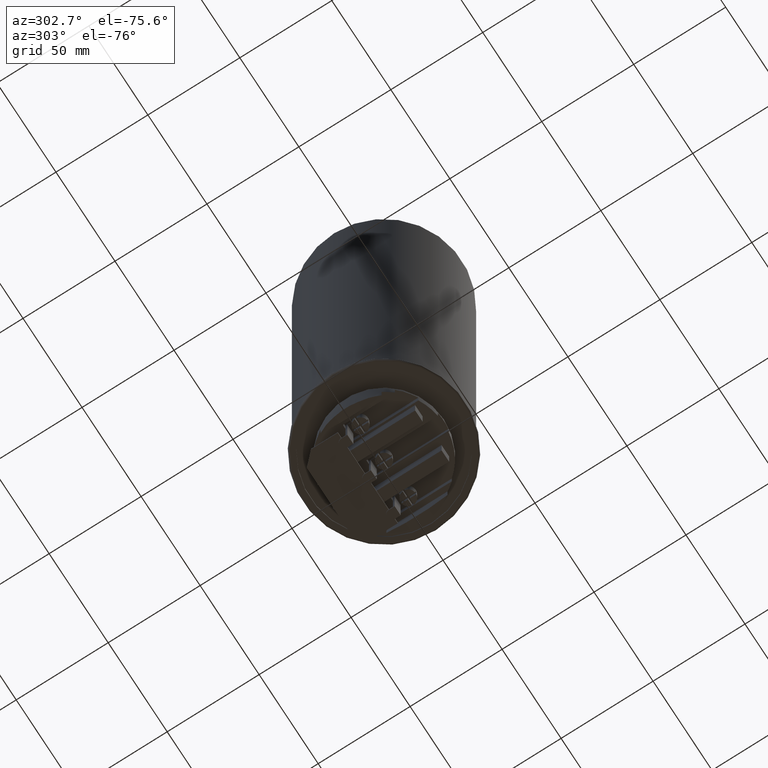
[diagram: clean part render]
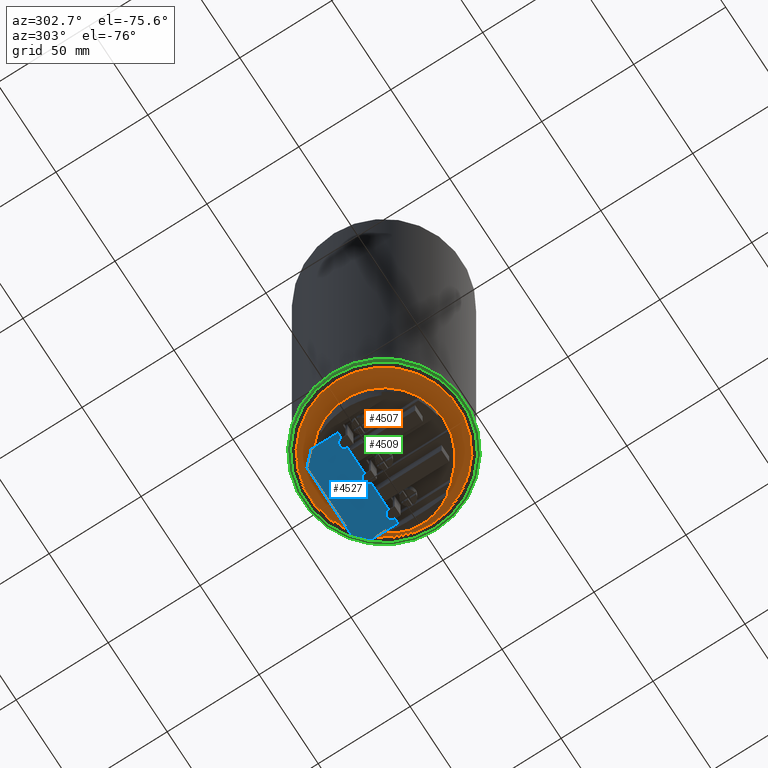
[diagram: same view with three faces highlighted in distinct colors, each labeled with its STEP entity id]
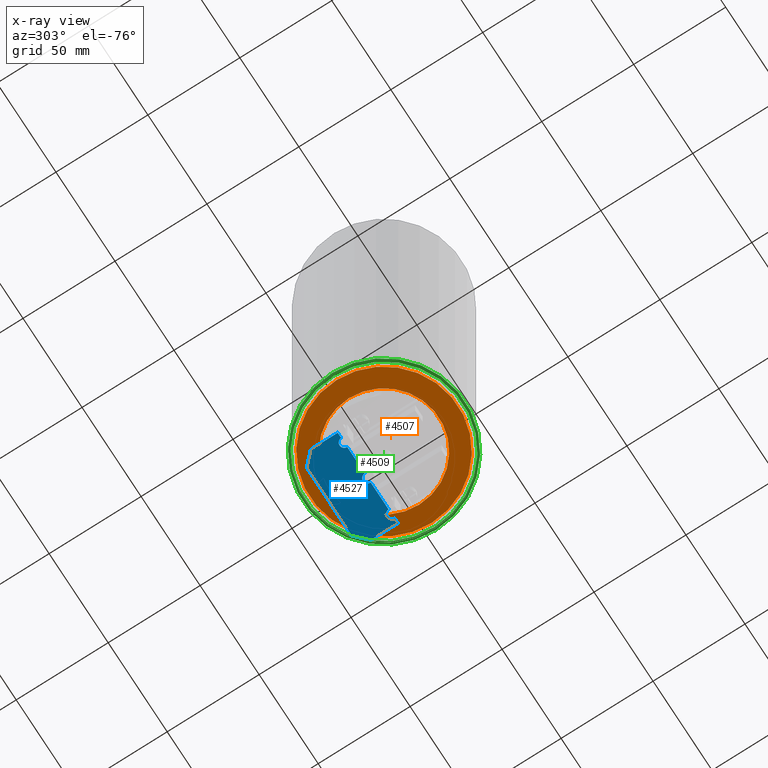
[diagram: x-ray of the same camera — body ghosted, the three highlighted faces saturated]
A machine part, auxiliary view with three faces highlighted in distinct colors.
The next image is the same camera in x-ray (body ghosted, the three faces saturated) — at least one of them is partly hidden behind the body in this view.
Their STEP definitions:

[orange] entity #4507 — the highlighted planar face has unit normal (0, 0, 1).
#201=FACE_BOUND('',#700,.T.);
#291=PLANE('',#4929);
#441=FACE_OUTER_BOUND('',#699,.T.);
#699=EDGE_LOOP('',(#3515));
#700=EDGE_LOOP('',(#3516));
#931=CIRCLE('',#4925,1.175);
#933=CIRCLE('',#4928,1.58130818663597);
#2083=VERTEX_POINT('',#6766);
#2085=VERTEX_POINT('',#6772);
#2602=EDGE_CURVE('',#2083,#2083,#931,.T.);
#2605=EDGE_CURVE('',#2085,#2085,#933,.T.);
#3515=ORIENTED_EDGE('',*,*,#2605,.T.);
#3516=ORIENTED_EDGE('',*,*,#2602,.T.);
#4507=ADVANCED_FACE('',(#441,#201),#291,.F.);
#4925=AXIS2_PLACEMENT_3D('',#6768,#5623,#5624);
#4928=AXIS2_PLACEMENT_3D('',#6774,#5630,#5631);
#4929=AXIS2_PLACEMENT_3D('',#6775,#5632,#5633);
#5623=DIRECTION('center_axis',(0.,0.,1.));
#5624=DIRECTION('ref_axis',(1.,0.,0.));
#5630=DIRECTION('center_axis',(0.,0.,-1.));
#5631=DIRECTION('ref_axis',(1.,0.,0.));
#5632=DIRECTION('center_axis',(0.,0.,1.));
#5633=DIRECTION('ref_axis',(1.,0.,0.));
#6766=CARTESIAN_POINT('',(-1.175,1.43895998899814E-16,0.));
#6768=CARTESIAN_POINT('Origin',(0.,0.,0.));
#6772=CARTESIAN_POINT('',(-1.58130818663597,1.93654400922925E-16,0.));
#6774=CARTESIAN_POINT('Origin',(0.,0.,0.));
#6775=CARTESIAN_POINT('Origin',(0.,0.,0.));

[blue] entity #4527 — the highlighted planar face has unit normal (0, -0, 1).
#307=PLANE('',#4958);
#461=FACE_OUTER_BOUND('',#722,.T.);
#722=EDGE_LOOP('',(#3613,#3614,#3615,#3616,#3617,#3618,#3619,#3620,#3621,
#3622,#3623,#3624));
#938=CIRCLE('',#4940,0.1);
#940=CIRCLE('',#4945,0.1);
#942=CIRCLE('',#4954,0.0999999999999999);
#1216=LINE('',#6841,#1671);
#1220=LINE('',#6849,#1675);
#1221=LINE('',#6850,#1676);
#1222=LINE('',#6852,#1677);
#1223=LINE('',#6854,#1678);
#1224=LINE('',#6856,#1679);
#1225=LINE('',#6857,#1680);
#1226=LINE('',#6858,#1681);
#1227=LINE('',#6859,#1682);
#1671=VECTOR('',#5711,0.393700787401575);
#1675=VECTOR('',#5717,0.393700787401575);
#1676=VECTOR('',#5718,0.393700787401575);
#1677=VECTOR('',#5719,0.393700787401575);
#1678=VECTOR('',#5720,0.393700787401575);
#1679=VECTOR('',#5721,0.393700787401575);
#1680=VECTOR('',#5722,0.393700787401575);
#1681=VECTOR('',#5723,0.393700787401575);
#1682=VECTOR('',#5724,0.393700787401575);
#2089=VERTEX_POINT('',#6787);
#2091=VERTEX_POINT('',#6793);
#2094=VERTEX_POINT('',#6806);
#2095=VERTEX_POINT('',#6808);
#2097=VERTEX_POINT('',#6823);
#2099=VERTEX_POINT('',#6829);
#2100=VERTEX_POINT('',#6839);
#2101=VERTEX_POINT('',#6840);
#2104=VERTEX_POINT('',#6848);
#2105=VERTEX_POINT('',#6851);
#2106=VERTEX_POINT('',#6853);
#2107=VERTEX_POINT('',#6855);
#2616=EDGE_CURVE('',#2091,#2089,#938,.T.);
#2620=EDGE_CURVE('',#2095,#2094,#940,.T.);
#2634=EDGE_CURVE('',#2099,#2097,#942,.T.);
#2636=EDGE_CURVE('',#2100,#2101,#1216,.T.);
#2640=EDGE_CURVE('',#2104,#2089,#1220,.T.);
#2641=EDGE_CURVE('',#2101,#2104,#1221,.T.);
#2642=EDGE_CURVE('',#2105,#2100,#1222,.T.);
#2643=EDGE_CURVE('',#2106,#2105,#1223,.T.);
#2644=EDGE_CURVE('',#2107,#2106,#1224,.T.);
#2645=EDGE_CURVE('',#2099,#2107,#1225,.T.);
#2646=EDGE_CURVE('',#2095,#2097,#1226,.T.);
#2647=EDGE_CURVE('',#2091,#2094,#1227,.T.);
#3613=ORIENTED_EDGE('',*,*,#2616,.T.);
#3614=ORIENTED_EDGE('',*,*,#2640,.F.);
#3615=ORIENTED_EDGE('',*,*,#2641,.F.);
#3616=ORIENTED_EDGE('',*,*,#2636,.F.);
#3617=ORIENTED_EDGE('',*,*,#2642,.F.);
#3618=ORIENTED_EDGE('',*,*,#2643,.F.);
#3619=ORIENTED_EDGE('',*,*,#2644,.F.);
#3620=ORIENTED_EDGE('',*,*,#2645,.F.);
#3621=ORIENTED_EDGE('',*,*,#2634,.T.);
#3622=ORIENTED_EDGE('',*,*,#2646,.F.);
#3623=ORIENTED_EDGE('',*,*,#2620,.T.);
#3624=ORIENTED_EDGE('',*,*,#2647,.F.);
#4527=ADVANCED_FACE('',(#461),#307,.F.);
#4940=AXIS2_PLACEMENT_3D('',#6798,#5660,#5661);
#4945=AXIS2_PLACEMENT_3D('',#6809,#5672,#5673);
#4954=AXIS2_PLACEMENT_3D('',#6834,#5702,#5703);
#4958=AXIS2_PLACEMENT_3D('',#6847,#5715,#5716);
#5660=DIRECTION('center_axis',(2.03112433316654E-32,-2.60004057652032E-31,
1.));
#5661=DIRECTION('ref_axis',(-1.,4.37095678986282E-16,0.));
#5672=DIRECTION('center_axis',(2.03112433316654E-32,-2.60004057652032E-31,
1.));
#5673=DIRECTION('ref_axis',(-1.,8.74191357972564E-16,0.));
#5702=DIRECTION('center_axis',(2.03112433316654E-32,-2.60004057652032E-31,
1.));
#5703=DIRECTION('ref_axis',(-1.,8.74191357972564E-16,0.));
#5711=DIRECTION('',(-0.707106781186549,-0.707106781186546,-1.69488414407619E-31));
#5715=DIRECTION('center_axis',(2.03112433316654E-32,-2.60004057652032E-31,
1.));
#5716=DIRECTION('ref_axis',(1.,0.,-2.03112433316654E-32));
#5717=DIRECTION('',(1.,-6.99353086378051E-16,-5.47494111298328E-31));
#5718=DIRECTION('',(-1.06349313621966E-15,-1.,2.15155348665614E-33));
#5719=DIRECTION('',(-1.,6.99353086378051E-16,5.47494111298328E-31));
#5720=DIRECTION('',(-0.707106781186547,0.707106781186549,1.98212850195921E-31));
#5721=DIRECTION('',(1.06349313621966E-15,1.,-2.15155348665614E-33));
#5722=DIRECTION('',(1.,-6.99353086378051E-16,-5.47494111298328E-31));
#5723=DIRECTION('',(1.,-6.99353086378051E-16,-5.47494111298328E-31));
#5724=DIRECTION('',(1.,-6.99353086378051E-16,-5.47494111298328E-31));
#6787=CARTESIAN_POINT('',(-0.883458799794164,0.348367567765509,-1.187));
#6793=CARTESIAN_POINT('',(-0.683458799794164,0.348367567765509,-1.187));
#6798=CARTESIAN_POINT('Origin',(-0.783458799794164,0.348367567765509,-1.187));
#6806=CARTESIAN_POINT('',(-0.0999999999999996,0.348367567765508,-1.187));
#6808=CARTESIAN_POINT('',(0.1,0.348367567765508,-1.187));
#6809=CARTESIAN_POINT('Origin',(3.5221276817937E-16,0.348367567765508,-1.187));
#6823=CARTESIAN_POINT('',(0.696243037715313,0.348367567765508,-1.187));
#6829=CARTESIAN_POINT('',(0.896243037715313,0.348367567765508,-1.187));
#6834=CARTESIAN_POINT('Origin',(0.796243037715313,0.348367567765508,-1.187));
#6839=CARTESIAN_POINT('',(-0.749999999999999,1.17036756776551,-1.187));
#6840=CARTESIAN_POINT('',(-0.999999999999999,0.920367567765509,-1.187));
#6841=CARTESIAN_POINT('',(-0.727749999999998,1.19261756776551,-1.187));
#6847=CARTESIAN_POINT('Origin',(6.55643518479423E-16,0.759367567765508,
-1.187));
#6848=CARTESIAN_POINT('',(-1.,0.348367567765509,-1.187));
#6849=CARTESIAN_POINT('',(-1.,0.348367567765509,-1.187));
#6850=CARTESIAN_POINT('',(-0.999999999999999,1.17036756776551,-1.187));
#6851=CARTESIAN_POINT('',(0.750000000000001,1.17036756776551,-1.187));
#6852=CARTESIAN_POINT('',(1.,1.17036756776551,-1.187));
#6853=CARTESIAN_POINT('',(1.,0.920367567765507,-1.187));
#6854=CARTESIAN_POINT('',(0.727750000000001,1.19261756776551,-1.187));
#6855=CARTESIAN_POINT('',(1.,0.348367567765507,-1.187));
#6856=CARTESIAN_POINT('',(1.,0.348367567765507,-1.187));
#6857=CARTESIAN_POINT('',(-1.,0.348367567765509,-1.187));
#6858=CARTESIAN_POINT('',(-1.,0.348367567765509,-1.187));
#6859=CARTESIAN_POINT('',(-1.,0.348367567765509,-1.187));

[green] entity #4509 — the highlighted toroidal blend (fillet) surface has major radius 42.799 mm and minor (blend) radius 1.27 mm.
#194=TOROIDAL_SURFACE('',#4932,1.685,0.05);
#443=FACE_OUTER_BOUND('',#703,.T.);
#703=EDGE_LOOP('',(#3519,#3520,#3521,#3522));
#934=CIRCLE('',#4931,1.685);
#935=CIRCLE('',#4933,0.05);
#936=CIRCLE('',#4934,1.685);
#2086=VERTEX_POINT('',#6777);
#2087=VERTEX_POINT('',#6780);
#2606=EDGE_CURVE('',#2086,#2086,#934,.T.);
#2607=EDGE_CURVE('',#2086,#2087,#935,.T.);
#2608=EDGE_CURVE('',#2087,#2087,#936,.T.);
#3519=ORIENTED_EDGE('',*,*,#2606,.T.);
#3520=ORIENTED_EDGE('',*,*,#2607,.T.);
#3521=ORIENTED_EDGE('',*,*,#2608,.T.);
#3522=ORIENTED_EDGE('',*,*,#2607,.F.);
#4509=ADVANCED_FACE('',(#443),#194,.T.);
#4931=AXIS2_PLACEMENT_3D('',#6778,#5636,#5637);
#4932=AXIS2_PLACEMENT_3D('',#6779,#5638,#5639);
#4933=AXIS2_PLACEMENT_3D('',#6781,#5640,#5641);
#4934=AXIS2_PLACEMENT_3D('',#6782,#5642,#5643);
#5636=DIRECTION('center_axis',(0.,0.,1.));
#5637=DIRECTION('ref_axis',(-1.,0.,0.));
#5638=DIRECTION('center_axis',(0.,0.,-1.));
#5639=DIRECTION('ref_axis',(-1.,0.,0.));
#5640=DIRECTION('center_axis',(-1.22464679914735E-16,-1.,0.));
#5641=DIRECTION('ref_axis',(1.,-1.22464679914735E-16,0.));
#5642=DIRECTION('center_axis',(0.,0.,-1.));
#5643=DIRECTION('ref_axis',(-1.,0.,0.));
#6777=CARTESIAN_POINT('',(1.685,2.06352985656329E-16,-0.05));
#6778=CARTESIAN_POINT('Origin',(0.,0.,-0.05));
#6779=CARTESIAN_POINT('Origin',(0.,0.,0.));
#6780=CARTESIAN_POINT('',(1.685,-2.06352985656329E-16,0.05));
#6781=CARTESIAN_POINT('Origin',(1.685,-2.06352985656329E-16,0.));
#6782=CARTESIAN_POINT('Origin',(0.,0.,0.05));